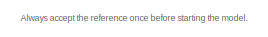
[diagram: root canvas - part 1/2, top left region]
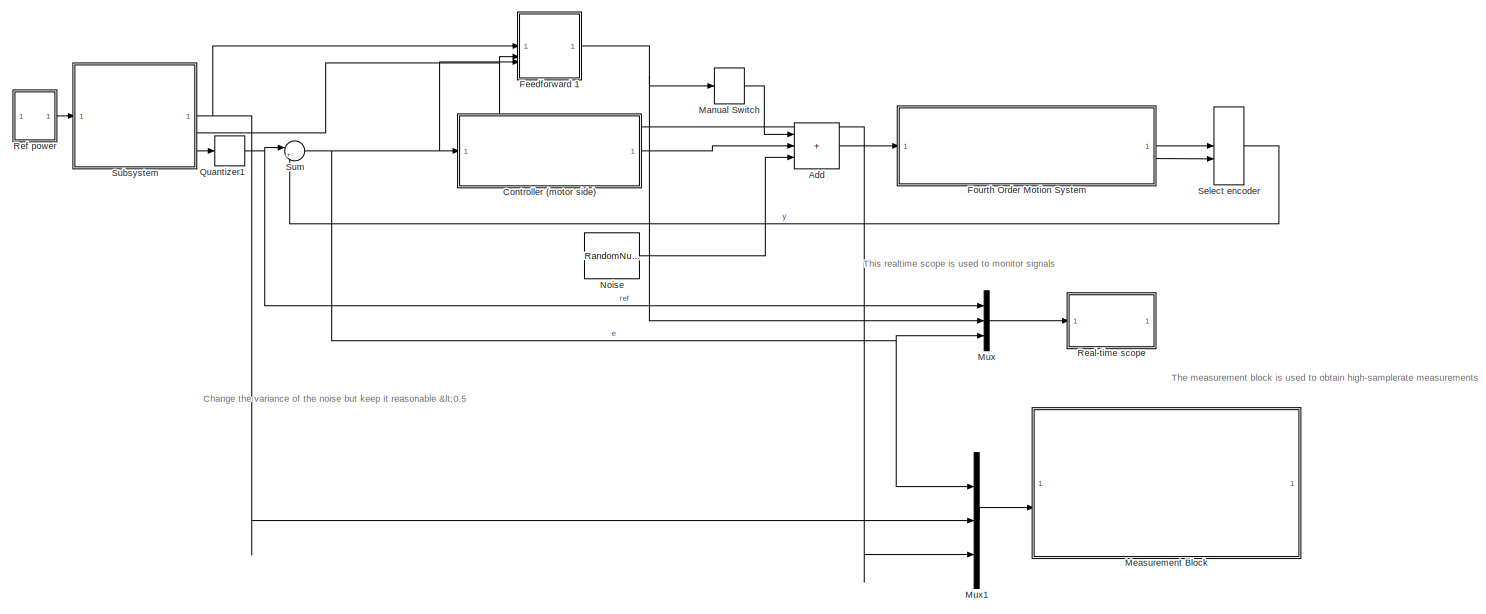
[diagram: root canvas - part 2/2, most of the canvas]
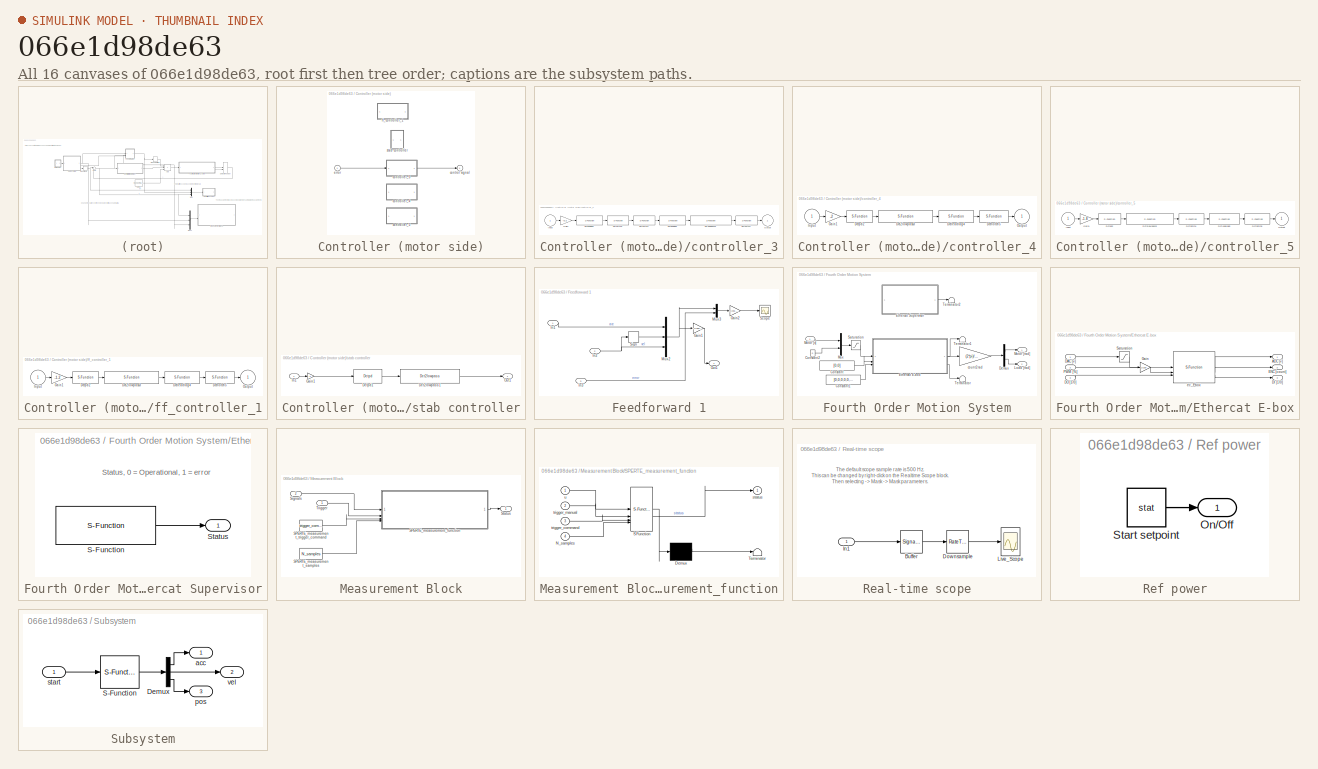
[diagram: thumbnail index - all 16 canvases of the model, root first then tree order]
MODEL slx_066e1d98de63
KIND model
CONFIG AbsTol = auto
CONFIG EnableMultiTasking = on
CONFIG FixedStep = Ts
CONFIG InitFcn = Fs = 4000; Ts = 1/Fs; tsim = 29.9997;
CONFIG MaxStep = auto
CONFIG MinStep = auto
CONFIG RelTol = 1e-3
CONFIG SampleTimeConstraint = Unconstrained
CONFIG SolverName = FixedStepDiscrete
CONFIG StartTime = 0.0
CONFIG StopTime = inf
BLOCK [Sum] Add
  IconShape = rectangular
  Inputs = +++
BLOCK [SubSystem] Controller (motor side)
BLOCK [Outport] Controller (motor side)/control signal
BLOCK [SubSystem] Controller (motor side)/controller_3
BLOCK [S-Function] Controller (motor side)/controller_3/Dct1lowpass6
  EnableBusSupport = off
  FunctionName = dlowpass1
  Parameters = f_den, 0.001
  SFcnIsStateOwnerBlock = off
  SFunctionDeploymentMode = off
BLOCK [S-Function] Controller (motor side)/controller_3/Dctleadlag2
  EnableBusSupport = off
  FunctionName = dleadlag
  Parameters = f_num, f_den, 0.001
  SFcnIsStateOwnerBlock = off
  SFunctionDeploymentMode = off
BLOCK [S-Function] Controller (motor side)/controller_3/Dctleadlag5
  EnableBusSupport = off
  FunctionName = dleadlag
  Parameters = f_num, f_den, 0.001
  SFcnIsStateOwnerBlock = off
  SFunctionDeploymentMode = off
BLOCK [S-Function] Controller (motor side)/controller_3/Dctnotch3
  EnableBusSupport = off
  FunctionName = dnotch
  Parameters = f_num, b_num, f_den, b_den, 0.001
  SFcnIsStateOwnerBlock = off
  SFunctionDeploymentMode = off
BLOCK [S-Function] Controller (motor side)/controller_3/Dctnotch4
  EnableBusSupport = off
  FunctionName = dnotch
  Parameters = f_num, b_num, f_den, b_den, 0.001
  SFcnIsStateOwnerBlock = off
  SFunctionDeploymentMode = off
BLOCK [S-Function] Controller (motor side)/controller_3/Dctnotch7
  EnableBusSupport = off
  FunctionName = dnotch
  Parameters = f_num, b_num, f_den, b_den, 0.001
  SFcnIsStateOwnerBlock = off
  SFunctionDeploymentMode = off
BLOCK [Gain] Controller (motor side)/controller_3/Gain1
  Gain = -0.2
BLOCK [Inport] Controller (motor side)/controller_3/Input
BLOCK [Outport] Controller (motor side)/controller_3/Output
BLOCK [SubSystem] Controller (motor side)/controller_4
  Commented = on
BLOCK [S-Function] Controller (motor side)/controller_4/Dct2lowpass3
  EnableBusSupport = off
  FunctionName = dlowpass2
  Parameters = f_den, b_den, 0.001
  SFcnIsStateOwnerBlock = off
  SFunctionDeploymentMode = off
BLOCK [S-Function] Controller (motor side)/controller_4/Dctleadlag4
  EnableBusSupport = off
  FunctionName = dleadlag
  Parameters = f_num, f_den, 0.001
  SFcnIsStateOwnerBlock = off
  SFunctionDeploymentMode = off
BLOCK [S-Function] Controller (motor side)/controller_4/Dctnotch5
  EnableBusSupport = off
  FunctionName = dnotch
  Parameters = f_num, b_num, f_den, b_den, 0.001
  SFcnIsStateOwnerBlock = off
  SFunctionDeploymentMode = off
BLOCK [S-Function] Controller (motor side)/controller_4/Dctpd2
  EnableBusSupport = off
  FunctionName = dpd
  Parameters = kp, kv, 0.001
  SFcnIsStateOwnerBlock = off
  SFunctionDeploymentMode = off
BLOCK [Gain] Controller (motor side)/controller_4/Gain1
  Gain = -2
BLOCK [Inport] Controller (motor side)/controller_4/Input
BLOCK [Outport] Controller (motor side)/controller_4/Output
BLOCK [SubSystem] Controller (motor side)/controller_5
BLOCK [S-Function] Controller (motor side)/controller_5/Dct2lowpass3
  EnableBusSupport = off
  FunctionName = dlowpass2
  Parameters = f_den, b_den, 0.001
  SFcnIsStateOwnerBlock = off
  SFunctionDeploymentMode = off
BLOCK [S-Function] Controller (motor side)/controller_5/Dctleadlag5
  EnableBusSupport = off
  FunctionName = dleadlag
  Parameters = f_num, f_den, 0.001
  SFcnIsStateOwnerBlock = off
  SFunctionDeploymentMode = off
BLOCK [S-Function] Controller (motor side)/controller_5/Dctnotch4
  EnableBusSupport = off
  FunctionName = dnotch
  Parameters = f_num, b_num, f_den, b_den, 0.001
  SFcnIsStateOwnerBlock = off
  SFunctionDeploymentMode = off
BLOCK [S-Function] Controller (motor side)/controller_5/Dctnotch6
  EnableBusSupport = off
  FunctionName = dnotch
  Parameters = f_num, b_num, f_den, b_den, 0.001
  SFcnIsStateOwnerBlock = off
  SFunctionDeploymentMode = off
BLOCK [S-Function] Controller (motor side)/controller_5/Dctpd2
  EnableBusSupport = off
  FunctionName = dpd
  Parameters = kp, kv, 0.001
  SFcnIsStateOwnerBlock = off
  SFunctionDeploymentMode = off
BLOCK [Gain] Controller (motor side)/controller_5/Gain1
  Gain = -1.8
BLOCK [Inport] Controller (motor side)/controller_5/Input
BLOCK [Outport] Controller (motor side)/controller_5/Output
BLOCK [Inport] Controller (motor side)/error
BLOCK [SubSystem] Controller (motor side)/ff_controller_1
  Commented = on
BLOCK [S-Function] Controller (motor side)/ff_controller_1/Dct2lowpass3
  EnableBusSupport = off
  FunctionName = dlowpass2
  Parameters = f_den, b_den, 0.001
  SFcnIsStateOwnerBlock = off
  SFunctionDeploymentMode = off
BLOCK [S-Function] Controller (motor side)/ff_controller_1/Dctleadlag4
  EnableBusSupport = off
  FunctionName = dleadlag
  Parameters = f_num, f_den, 0.001
  SFcnIsStateOwnerBlock = off
  SFunctionDeploymentMode = off
BLOCK [S-Function] Controller (motor side)/ff_controller_1/Dctnotch5
  EnableBusSupport = off
  FunctionName = dnotch
  Parameters = f_num, b_num, f_den, b_den, 0.001
  SFcnIsStateOwnerBlock = off
  SFunctionDeploymentMode = off
BLOCK [S-Function] Controller (motor side)/ff_controller_1/Dctpd2
  EnableBusSupport = off
  FunctionName = dpd
  Parameters = kp, kv, 0.001
  SFcnIsStateOwnerBlock = off
  SFunctionDeploymentMode = off
BLOCK [Gain] Controller (motor side)/ff_controller_1/Gain1
  Gain = -1.2
BLOCK [Inport] Controller (motor side)/ff_controller_1/Input
BLOCK [Outport] Controller (motor side)/ff_controller_1/Output
BLOCK [SubSystem] Controller (motor side)/stab controller
  Commented = on
BLOCK [Reference] Controller (motor side)/stab controller/Dct2lowpass1  REF=sperte_lib/Dct2lowpass  (lib defined in slx_32fa897d258a)
  SourceBlock = sperte_lib/Dct2lowpass
  SourceProductName = SPERTE project library
  SourceType = dctools
BLOCK [Reference] Controller (motor side)/stab controller/Dctpd1  REF=sperte_lib/Dctpd  (lib defined in slx_32fa897d258a)
  SourceBlock = sperte_lib/Dctpd
  SourceProductName = SPERTE project library
  SourceType = dctools
BLOCK [Gain] Controller (motor side)/stab controller/Gain1
  Gain = -1
  OutDataTypeStr = Inherit: Same as input
  ParamDataTypeStr = Inherit: Same as input
  SaturateOnIntegerOverflow = on
BLOCK [Inport] Controller (motor side)/stab controller/In1
BLOCK [Outport] Controller (motor side)/stab controller/Out1
BLOCK [SubSystem] Feedforward 1
BLOCK [Gain] Feedforward 1/Gain1
  Gain = [-0.00038 -0.005 -0.00002]
  Multiplication = Matrix(K*u)
BLOCK [Gain] Feedforward 1/Gain2
  Gain = [0.001 0.05 0.001 1]
BLOCK [Inport] Feedforward 1/In1
BLOCK [Inport] Feedforward 1/In2
  Port = 2
BLOCK [Inport] Feedforward 1/In3
  Port = 3
BLOCK [Mux] Feedforward 1/Mux2
  DisplayOption = bar
  Inputs = 3
BLOCK [Mux] Feedforward 1/Mux3
  DisplayOption = bar
  Inputs = [3 1]
BLOCK [Outport] Feedforward 1/Out1
BLOCK [Scope] Feedforward 1/Scope
  Floating = off
  NumInputPorts = 1
  ScopeSpecificationString = Simulink.scopes.TimeScopeBlockCfg('CurrentConfiguration', extmgr.ConfigurationSet(extmgr.Configuration('Core','General UI',true),extmgr.Configuration('Core','Source UI',true),extmgr.Configuration('Sources','WiredSimulink',true,'DataLoggingVariableName','ScopeData1'),extmgr.Configuration('Visuals','Time Domain',true,'SerializedDisplays',{struct('MinYLimReal','-0.25','MaxYLimReal','0.25','YLabelReal...<+1498ch>
BLOCK [Signum] Feedforward 1/Sign
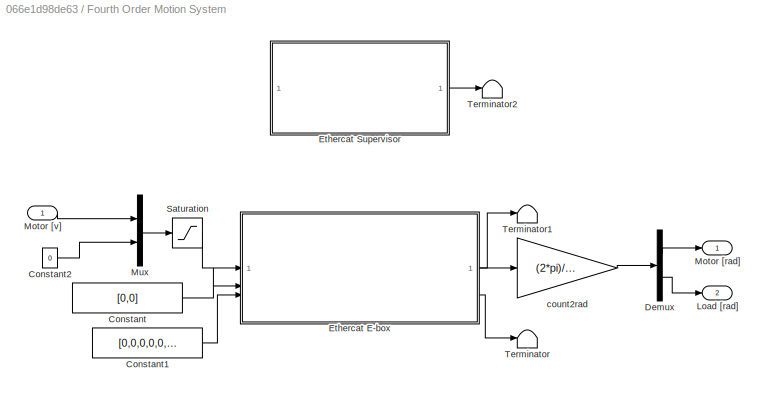
BLOCK [SubSystem] Fourth Order Motion System
BLOCK [Constant] Fourth Order Motion System/Constant
  Value = [0,0]
BLOCK [Constant] Fourth Order Motion System/Constant1
  Value = [0,0,0,0,0,0,0,0]
BLOCK [Constant] Fourth Order Motion System/Constant2
  Value = 0
BLOCK [Demux] Fourth Order Motion System/Demux
  Outputs = 2
BLOCK [SubSystem] Fourth Order Motion System/Ethercat E-box
  Priority = -2
  UserDataPersistent = on
BLOCK [Outport] Fourth Order Motion System/Ethercat E-box/ADC [v]
BLOCK [Inport] Fourth Order Motion System/Ethercat E-box/DAC [v]
BLOCK [Outport] Fourth Order Motion System/Ethercat E-box/DI [1//0]
  Port = 3
BLOCK [Inport] Fourth Order Motion System/Ethercat E-box/DO [1//0]
  Port = 3
BLOCK [Outport] Fourth Order Motion System/Ethercat E-box/ENC [count]
  Port = 2
BLOCK [Gain] Fourth Order Motion System/Ethercat E-box/Gain
  Gain = 1/100
BLOCK [Inport] Fourth Order Motion System/Ethercat E-box/PWM [%]
  Port = 2
BLOCK [Saturate] Fourth Order Motion System/Ethercat E-box/Saturation
  LowerLimit = -10
  UpperLimit = 10
BLOCK [S-Function] Fourth Order Motion System/Ethercat E-box/ec_Ebox
  EnableBusSupport = off
  FunctionName = ec_Ebox
  Parameters = link_id
  SFcnIsStateOwnerBlock = off
  SFunctionDeploymentMode = off
BLOCK [SubSystem] Fourth Order Motion System/Ethercat Supervisor
  Description = Must be executed first, keep at -1 priority (highest)
  Priority = -3
  UserDataPersistent = on
BLOCK [S-Function] Fourth Order Motion System/Ethercat Supervisor/S-Function
  EnableBusSupport = off
  FunctionName = ec_Supervisor
  Parameters = portid,ectimeout
  SFcnIsStateOwnerBlock = off
  SFunctionDeploymentMode = off
BLOCK [Outport] Fourth Order Motion System/Ethercat Supervisor/Status
BLOCK [Outport] Fourth Order Motion System/Load [rad]
  Port = 2
BLOCK [Outport] Fourth Order Motion System/Motor [rad]
BLOCK [Inport] Fourth Order Motion System/Motor [v]
BLOCK [Mux] Fourth Order Motion System/Mux
  DisplayOption = bar
  Inputs = 2
BLOCK [Saturate] Fourth Order Motion System/Saturation
  LowerLimit = -2.5
  UpperLimit = 2.5
BLOCK [Terminator] Fourth Order Motion System/Terminator
BLOCK [Terminator] Fourth Order Motion System/Terminator1
BLOCK [Terminator] Fourth Order Motion System/Terminator2
BLOCK [Gain] Fourth Order Motion System/count2rad
  Gain = (2*pi)/(4*500)
BLOCK [ManualSwitch] Manual Switch
BLOCK [SubSystem] Measurement Block
  Description = Perform on-demand measurements to file using this block.\n\nIt can be used in 2 ways:\n1) Set the mask triggertype parameter to manual and use the trigger input signal to trigger a measurement.\nYou can do this by providing a 0 to 1 transition.\nKeep it low after you start/complete the measurement, or it will measure again.\nA file is created with measurement_0,1,2... etc\n\n2) Keep the model running, and...<+417ch>
  Priority = -1
  UserDataPersistent = on
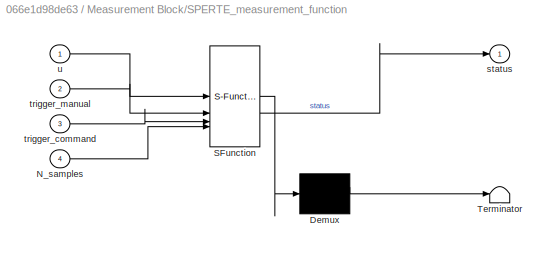
BLOCK [SubSystem] Measurement Block/SPERTE_measurement_function
  ErrorFcn = Stateflow.Translate.translate
  PermitHierarchicalResolution = ExplicitOnly
  SFBlockType = MATLAB Function
  TreatAsAtomicUnit = on
BLOCK [Demux] Measurement Block/SPERTE_measurement_function/ Demux 
  Outputs = 1
BLOCK [S-Function] Measurement Block/SPERTE_measurement_function/ SFunction 
  EnableBusSupport = on
  FunctionName = sf_sfun
  Parameters = triggertype
  PortCounts = [4 2]
  SFcnIsStateOwnerBlock = off
  SFunctionDeploymentMode = off
  Tag = Stateflow S-Function 1
BLOCK [Terminator] Measurement Block/SPERTE_measurement_function/ Terminator 
BLOCK [Inport] Measurement Block/SPERTE_measurement_function/N_samples
  Port = 4
BLOCK [Outport] Measurement Block/SPERTE_measurement_function/status
BLOCK [Inport] Measurement Block/SPERTE_measurement_function/trigger_command
  Port = 3
BLOCK [Inport] Measurement Block/SPERTE_measurement_function/trigger_manual
  Port = 2
BLOCK [Inport] Measurement Block/SPERTE_measurement_function/u
BLOCK [Constant] Measurement Block/SPERTE_measurement_samples
  OutDataTypeStr = uint32
  Value = N_samples
BLOCK [Constant] Measurement Block/SPERTE_measurement_trigger_command
  OutDataTypeStr = uint8
  Value = trigger_command
BLOCK [Inport] Measurement Block/Signals
  Port = 2
BLOCK [Outport] Measurement Block/Status
BLOCK [Inport] Measurement Block/Trigger
BLOCK [Mux] Mux
  DisplayOption = bar
  Inputs = 3
BLOCK [Mux] Mux1
  DisplayOption = bar
  Inputs = 3
BLOCK [RandomNumber] Noise
  SampleTime = Ts
  Variance = 0
BLOCK [Quantizer] Quantizer1
  QuantizationInterval = (2*pi)/(500*4)
BLOCK [SubSystem] Real-time scope
  CopyFcn = set_param(gcb,'LinkStatus','None')
  OpenFcn = open_system(strcat(get_param(gcb,'Parent'),'/',get_param(gcb,'Name'),'/Live_Scope'),'force');
  Priority = 0
  UserDataPersistent = on
BLOCK [SignalConversion] Real-time scope/Buffer
  OverrideOpt = off
BLOCK [RateTransition] Real-time scope/Downsample
  OutPortSampleTime = Sample_Time
BLOCK [Inport] Real-time scope/In1
BLOCK [Scope] Real-time scope/Live_Scope
  Floating = off
  NumInputPorts = 1
  ScopeSpecificationString = Simulink.scopes.TimeScopeBlockCfg('CurrentConfiguration', extmgr.ConfigurationSet(extmgr.Configuration('Core','General UI',true),extmgr.Configuration('Core','Source UI',true),extmgr.Configuration('Sources','WiredSimulink',true),extmgr.Configuration('Visuals','Time Domain',true,'SerializedDisplays',{struct('MinYLimReal','-25.69941','MaxYLimReal','228.46722','YLabelReal','','MinYLimMag','0.00000','M...<+1565ch>
BLOCK [SubSystem] Ref power
BLOCK [Outport] Ref power/On//Off
BLOCK [Constant] Ref power/Start setpoint
  Value = stat
BLOCK [ManualSwitch] Select encoder
  CurrentSetting = 0
BLOCK [SubSystem] Subsystem
  OpenFcn = global ref_part; cb_axes 1
BLOCK [Demux] Subsystem/Demux
  DisplayOption = none
  Outputs = 3
BLOCK [S-Function] Subsystem/S-Function
  EnableBusSupport = off
  FunctionName = ref3b
  OpenFcn = global ref_part; r3g_main
  Parameters = ref_part
  SFcnIsStateOwnerBlock = off
  SFunctionDeploymentMode = off
BLOCK [Outport] Subsystem/acc
BLOCK [Outport] Subsystem/pos
  Port = 3
BLOCK [Inport] Subsystem/start
BLOCK [Outport] Subsystem/vel
  Port = 2
BLOCK [Sum] Sum
  Inputs = |+-
ANNOTATION (root): Always accept the reference once before starting the model.
ANNOTATION (root): Change the variance of the noise but keep it reasonable <0.5
ANNOTATION (root): The measurement block is used to obtain high-samplerate measurements
ANNOTATION (root): This realtime scope is used to monitor signals
ANNOTATION Fourth Order Motion System/Ethercat Supervisor: Status, 0 = Operational, 1 = error
ANNOTATION Real-time scope: The default scope sample rate is 500 Hz. This can be changed by right-click on the Realtime Scope block. Then selecting -> Mask -> Mask parameters.
LINE Add:1 -> Fourth Order Motion System:1
LINE Controller (motor side)/controller_3/Dct1lowpass6:1 -> Controller (motor side)/controller_3/Dctnotch7:1
LINE Controller (motor side)/controller_3/Dctleadlag2:1 -> Controller (motor side)/controller_3/Dctnotch3:1
LINE Controller (motor side)/controller_3/Dctleadlag5:1 -> Controller (motor side)/controller_3/Dct1lowpass6:1
LINE Controller (motor side)/controller_3/Dctnotch3:1 -> Controller (motor side)/controller_3/Dctnotch4:1
LINE Controller (motor side)/controller_3/Dctnotch4:1 -> Controller (motor side)/controller_3/Dctleadlag5:1
LINE Controller (motor side)/controller_3/Dctnotch7:1 -> Controller (motor side)/controller_3/Output:1
LINE Controller (motor side)/controller_3/Gain1:1 -> Controller (motor side)/controller_3/Dctleadlag2:1
LINE Controller (motor side)/controller_3/Input:1 -> Controller (motor side)/controller_3/Gain1:1
LINE Controller (motor side)/controller_3:1 -> Controller (motor side)/control signal:1
LINE Controller (motor side)/controller_4/Dct2lowpass3:1 -> Controller (motor side)/controller_4/Dctleadlag4:1
LINE Controller (motor side)/controller_4/Dctleadlag4:1 -> Controller (motor side)/controller_4/Dctnotch5:1
LINE Controller (motor side)/controller_4/Dctnotch5:1 -> Controller (motor side)/controller_4/Output:1
LINE Controller (motor side)/controller_4/Dctpd2:1 -> Controller (motor side)/controller_4/Dct2lowpass3:1
LINE Controller (motor side)/controller_4/Gain1:1 -> Controller (motor side)/controller_4/Dctpd2:1
LINE Controller (motor side)/controller_4/Input:1 -> Controller (motor side)/controller_4/Gain1:1
LINE Controller (motor side)/controller_5/Dct2lowpass3:1 -> Controller (motor side)/controller_5/Dctnotch4:1
LINE Controller (motor side)/controller_5/Dctleadlag5:1 -> Controller (motor side)/controller_5/Dctnotch6:1
LINE Controller (motor side)/controller_5/Dctnotch4:1 -> Controller (motor side)/controller_5/Dctleadlag5:1
LINE Controller (motor side)/controller_5/Dctnotch6:1 -> Controller (motor side)/controller_5/Output:1
LINE Controller (motor side)/controller_5/Dctpd2:1 -> Controller (motor side)/controller_5/Dct2lowpass3:1
LINE Controller (motor side)/controller_5/Gain1:1 -> Controller (motor side)/controller_5/Dctpd2:1
LINE Controller (motor side)/controller_5/Input:1 -> Controller (motor side)/controller_5/Gain1:1
LINE Controller (motor side)/error:1 -> Controller (motor side)/controller_3:1
LINE Controller (motor side)/ff_controller_1/Dct2lowpass3:1 -> Controller (motor side)/ff_controller_1/Dctleadlag4:1
LINE Controller (motor side)/ff_controller_1/Dctleadlag4:1 -> Controller (motor side)/ff_controller_1/Dctnotch5:1
LINE Controller (motor side)/ff_controller_1/Dctnotch5:1 -> Controller (motor side)/ff_controller_1/Output:1
LINE Controller (motor side)/ff_controller_1/Dctpd2:1 -> Controller (motor side)/ff_controller_1/Dct2lowpass3:1
LINE Controller (motor side)/ff_controller_1/Gain1:1 -> Controller (motor side)/ff_controller_1/Dctpd2:1
LINE Controller (motor side)/ff_controller_1/Input:1 -> Controller (motor side)/ff_controller_1/Gain1:1
LINE Controller (motor side)/stab controller/Dct2lowpass1:1 -> Controller (motor side)/stab controller/Out1:1
LINE Controller (motor side)/stab controller/Dctpd1:1 -> Controller (motor side)/stab controller/Dct2lowpass1:1
LINE Controller (motor side)/stab controller/Gain1:1 -> Controller (motor side)/stab controller/Dctpd1:1
LINE Controller (motor side)/stab controller/In1:1 -> Controller (motor side)/stab controller/Gain1:1
LINE Controller (motor side):1 -> Add:2
LINE Feedforward 1/Gain1:1 -> Feedforward 1/Out1:1
LINE Feedforward 1/Gain2:1 -> Feedforward 1/Scope:1
LINE Feedforward 1/In1:1 -> Feedforward 1/Mux2:1
NET Feedforward 1/In2:1 -> Feedforward 1/Mux2:3, Feedforward 1/Sign:1
LINE Feedforward 1/In3:1 -> Feedforward 1/Mux3:2
NET Feedforward 1/Mux2:1 -> Feedforward 1/Gain1:1, Feedforward 1/Mux3:1
LINE Feedforward 1/Mux3:1 -> Feedforward 1/Gain2:1
LINE Feedforward 1/Sign:1 -> Feedforward 1/Mux2:2
NET Feedforward 1:1 -> Manual Switch:1, Mux:2
LINE Fourth Order Motion System/Constant1:1 -> Fourth Order Motion System/Ethercat E-box:3
LINE Fourth Order Motion System/Constant2:1 -> Fourth Order Motion System/Mux:2
LINE Fourth Order Motion System/Constant:1 -> Fourth Order Motion System/Ethercat E-box:2
LINE Fourth Order Motion System/Demux:1 -> Fourth Order Motion System/Motor [rad]:1
LINE Fourth Order Motion System/Demux:2 -> Fourth Order Motion System/Load [rad]:1
LINE Fourth Order Motion System/Ethercat E-box/DAC [v]:1 -> Fourth Order Motion System/Ethercat E-box/Saturation:1
LINE Fourth Order Motion System/Ethercat E-box/DO [1//0]:1 -> Fourth Order Motion System/Ethercat E-box/ec_Ebox:3
LINE Fourth Order Motion System/Ethercat E-box/Gain:1 -> Fourth Order Motion System/Ethercat E-box/ec_Ebox:2
LINE Fourth Order Motion System/Ethercat E-box/PWM [%]:1 -> Fourth Order Motion System/Ethercat E-box/Gain:1
LINE Fourth Order Motion System/Ethercat E-box/Saturation:1 -> Fourth Order Motion System/Ethercat E-box/ec_Ebox:1
LINE Fourth Order Motion System/Ethercat E-box/ec_Ebox:1 -> Fourth Order Motion System/Ethercat E-box/ADC [v]:1
LINE Fourth Order Motion System/Ethercat E-box/ec_Ebox:2 -> Fourth Order Motion System/Ethercat E-box/ENC [count]:1
LINE Fourth Order Motion System/Ethercat E-box/ec_Ebox:3 -> Fourth Order Motion System/Ethercat E-box/DI [1//0]:1
LINE Fourth Order Motion System/Ethercat E-box:1 -> Fourth Order Motion System/Terminator1:1
LINE Fourth Order Motion System/Ethercat E-box:2 -> Fourth Order Motion System/count2rad:1
LINE Fourth Order Motion System/Ethercat E-box:3 -> Fourth Order Motion System/Terminator:1
LINE Fourth Order Motion System/Ethercat Supervisor/S-Function:1 -> Fourth Order Motion System/Ethercat Supervisor/Status:1
LINE Fourth Order Motion System/Ethercat Supervisor:1 -> Fourth Order Motion System/Terminator2:1
LINE Fourth Order Motion System/Motor [v]:1 -> Fourth Order Motion System/Mux:1
LINE Fourth Order Motion System/Mux:1 -> Fourth Order Motion System/Saturation:1
LINE Fourth Order Motion System/Saturation:1 -> Fourth Order Motion System/Ethercat E-box:1
LINE Fourth Order Motion System/count2rad:1 -> Fourth Order Motion System/Demux:1
LINE Fourth Order Motion System:1 -> Select encoder:1
LINE Fourth Order Motion System:2 -> Select encoder:2
LINE Manual Switch:1 -> Add:1
LINE Measurement Block/SPERTE_measurement_function:1 -> Measurement Block/Status:1
LINE Measurement Block/SPERTE_measurement_samples:1 -> Measurement Block/SPERTE_measurement_function:4
LINE Measurement Block/SPERTE_measurement_trigger_command:1 -> Measurement Block/SPERTE_measurement_function:3
LINE Measurement Block/Signals:1 -> Measurement Block/SPERTE_measurement_function:1
LINE Measurement Block/Trigger:1 -> Measurement Block/SPERTE_measurement_function:2
LINE Mux1:1 -> Measurement Block:2
LINE Mux:1 -> Real-time scope:1
LINE Noise:1 -> Add:3
NET Quantizer1:1 -> Mux:1, Sum:1
LINE Real-time scope/Buffer:1 -> Real-time scope/Downsample:1
LINE Real-time scope/Downsample:1 -> Real-time scope/Live_Scope:1
LINE Real-time scope/In1:1 -> Real-time scope/Buffer:1
LINE Ref power/Start setpoint:1 -> Ref power/On//Off:1
LINE Ref power:1 -> Subsystem:1
LINE Select encoder:1 -> Sum:2
LINE Subsystem/Demux:1 -> Subsystem/acc:1
LINE Subsystem/Demux:2 -> Subsystem/vel:1
LINE Subsystem/Demux:3 -> Subsystem/pos:1
LINE Subsystem/S-Function:1 -> Subsystem/Demux:1
LINE Subsystem/start:1 -> Subsystem/S-Function:1
NET Subsystem:1 -> Feedforward 1:1, Mux1:2
NET Subsystem:2 -> Feedforward 1:2, Mux1:3
LINE Subsystem:3 -> Quantizer1:1
NET Sum:1 -> Controller (motor side):1, Feedforward 1:3, Mux1:1, Mux:3
note: NET lines group one-source signal fan-out (src -> all destinations, sorted); 1:1 wires keep LINE
CHART Measurement Block/SPERTE_measurement_function states=1 transitions=1
  STATE_LABEL 'eML_blk_kernel()'
  STATE_LABEL 'SCRIPT:\nfunction status = perform_measurement(u, trigger_manual, trigger_command, triggertype, N_samples)\n\n%% Persistent variables\npersistent fileID NF busy NS\n\n% Init parameters\nif isempty(NF)\n    NF = int16(0);\nend\nif isempty(NS)\n    NS = uint32(0);\nend\nif isempty(fileID)\n    fileID = 0;\nend\nif isempty(busy)\n    busy = uint8(0);\nend\n\n%% Check the triggers\nif ( (triggertype == 0 && trigger_manual...<+770ch>'
CHART  states=0 transitions=0
